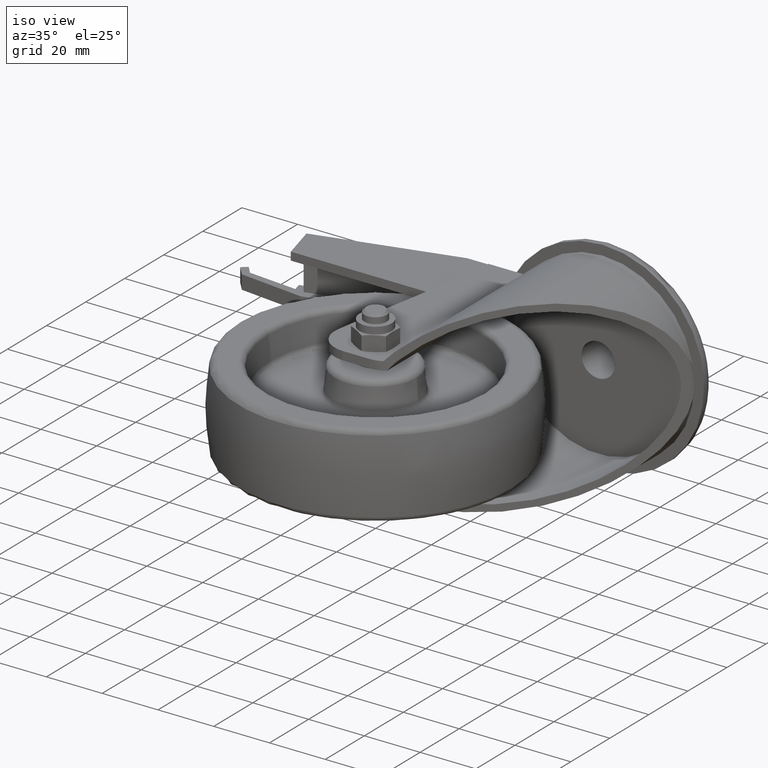
[diagram: clean part render]
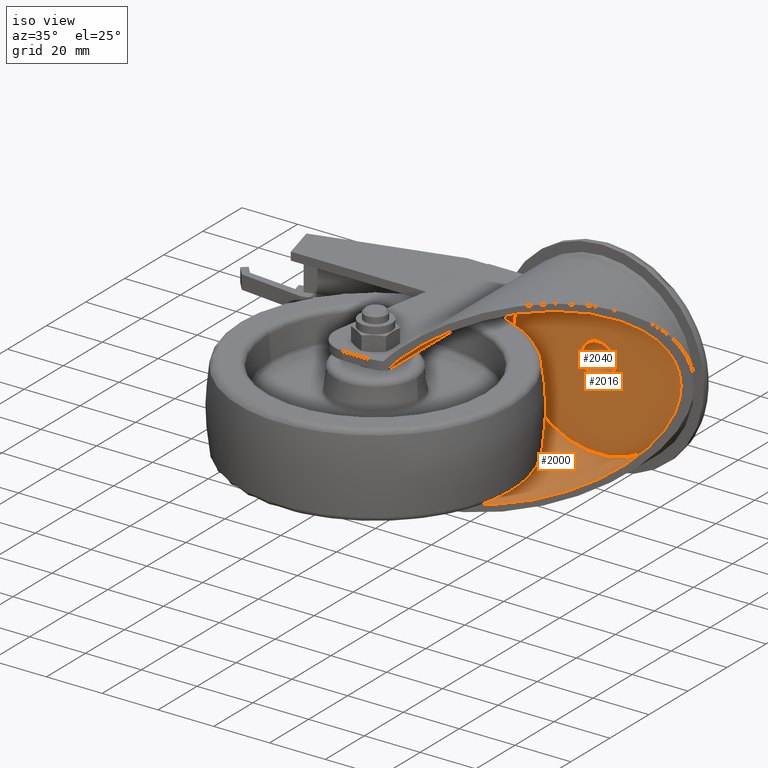
[diagram: same view with one multi-face feature highlighted, each face labeled with its STEP entity id]
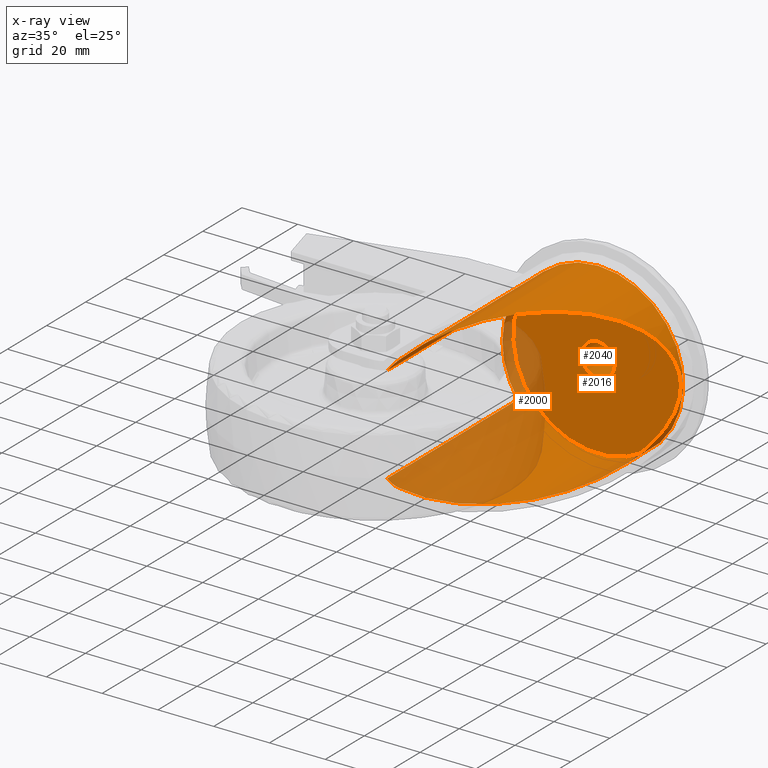
[diagram: x-ray of the same camera — body ghosted, the whole feature saturated]
A machine part, iso view. The highlighted faces form ONE feature: a stepped (counterbored) hole: 2 coaxial cylindrical walls of radii 6 -> 30.5 mm joined by 1 annular planar shoulder face(s). The faces share edges in the B-rep.
The next image is the same camera in x-ray: the body ghosted and the whole hole feature saturated, so the bore chain is visible through the body.
Their STEP definitions:
[1] entity #2000 (Cylinder):
#150=B_SPLINE_CURVE_WITH_KNOTS('',3,(#3205,#3206,#3207,#3208,#3209,#3210),
 .UNSPECIFIED.,.F.,.F.,(4,2,4),(7.83886459878174,8.14861997572344,8.32202138963717),
 .UNSPECIFIED.);
#151=B_SPLINE_CURVE_WITH_KNOTS('',3,(#3213,#3214,#3215,#3216,#3217,#3218),
 .UNSPECIFIED.,.F.,.F.,(4,2,4),(3.67470860947211,3.84811002338585,4.15786540032755),
 .UNSPECIFIED.);
#252=FACE_OUTER_BOUND('',#383,.T.);
#383=EDGE_LOOP('',(#1455,#1456,#1457,#1458,#1459,#1460,#1461,#1462,#1463,
#1464));
#517=CIRCLE('',#2234,30.5);
#528=CIRCLE('',#2254,30.5);
#623=ELLIPSE('',#2255,50.1597158237745,30.5);
#624=ELLIPSE('',#2256,50.1597158237745,30.5);
#656=LINE('',#3166,#789);
#659=LINE('',#3181,#792);
#671=LINE('',#3249,#804);
#789=VECTOR('',#2523,1000.);
#792=VECTOR('',#2538,1000.);
#804=VECTOR('',#2576,30.5);
#914=VERTEX_POINT('',#3147);
#917=VERTEX_POINT('',#3152);
#922=VERTEX_POINT('',#3165);
#928=VERTEX_POINT('',#3179);
#935=VERTEX_POINT('',#3203);
#936=VERTEX_POINT('',#3212);
#942=VERTEX_POINT('',#3246);
#943=VERTEX_POINT('',#3248);
#1104=EDGE_CURVE('',#914,#917,#517,.T.);
#1110=EDGE_CURVE('',#922,#914,#656,.F.);
#1118=EDGE_CURVE('',#917,#928,#659,.T.);
#1127=EDGE_CURVE('',#928,#935,#150,.T.);
#1128=EDGE_CURVE('',#936,#922,#151,.T.);
#1139=EDGE_CURVE('',#942,#942,#528,.T.);
#1140=EDGE_CURVE('',#942,#943,#671,.T.);
#1141=EDGE_CURVE('',#936,#943,#623,.F.);
#1142=EDGE_CURVE('',#943,#935,#624,.F.);
#1455=ORIENTED_EDGE('',*,*,#1139,.F.);
#1456=ORIENTED_EDGE('',*,*,#1140,.T.);
#1457=ORIENTED_EDGE('',*,*,#1141,.F.);
#1458=ORIENTED_EDGE('',*,*,#1128,.T.);
#1459=ORIENTED_EDGE('',*,*,#1110,.T.);
#1460=ORIENTED_EDGE('',*,*,#1104,.T.);
#1461=ORIENTED_EDGE('',*,*,#1118,.T.);
#1462=ORIENTED_EDGE('',*,*,#1127,.T.);
#1463=ORIENTED_EDGE('',*,*,#1142,.F.);
#1464=ORIENTED_EDGE('',*,*,#1140,.F.);
#1971=CYLINDRICAL_SURFACE('',#2253,30.5);
#2000=ADVANCED_FACE('',(#252),#1971,.F.);
#2234=AXIS2_PLACEMENT_3D('',#3154,#2514,#2515);
#2253=AXIS2_PLACEMENT_3D('',#3245,#2572,#2573);
#2254=AXIS2_PLACEMENT_3D('',#3247,#2574,#2575);
#2255=AXIS2_PLACEMENT_3D('',#3250,#2577,#2578);
#2256=AXIS2_PLACEMENT_3D('',#3251,#2579,#2580);
#2514=DIRECTION('center_axis',(0.,-1.,0.));
#2515=DIRECTION('ref_axis',(0.,0.,-1.));
#2523=DIRECTION('',(0.,-1.,0.));
#2538=DIRECTION('',(0.,-1.,0.));
#2572=DIRECTION('center_axis',(0.,-1.,0.));
#2573=DIRECTION('ref_axis',(0.,0.,-1.));
#2574=DIRECTION('center_axis',(0.,-1.,0.));
#2575=DIRECTION('ref_axis',(0.,0.,-1.));
#2576=DIRECTION('',(0.,-1.,0.));
#2577=DIRECTION('center_axis',(0.79389285693816,-0.608057671362319,0.));
#2578=DIRECTION('ref_axis',(-0.608057671362319,-0.79389285693816,0.));
#2579=DIRECTION('center_axis',(0.79389285693816,-0.608057671362319,0.));
#2580=DIRECTION('ref_axis',(-0.608057671362319,-0.79389285693816,0.));
#3147=CARTESIAN_POINT('',(10.0200080064064,58.5,17.5));
#3152=CARTESIAN_POINT('',(10.0200080064064,58.5,-17.5));
#3154=CARTESIAN_POINT('Origin',(35.,58.5,0.));
#3165=CARTESIAN_POINT('',(10.0200080064064,-8.46743850357188,17.5));
#3166=CARTESIAN_POINT('',(10.0200080064064,-10.,17.5));
#3179=CARTESIAN_POINT('',(10.0200080064064,-8.46743850357188,-17.5));
#3181=CARTESIAN_POINT('',(10.0200080064064,-10.,-17.5));
#3203=CARTESIAN_POINT('',(12.6389285693816,-6.08057671362318,-20.7420462942975));
#3205=CARTESIAN_POINT('Ctrl Pts',(10.0200080064064,-8.46743850357188,-17.5));
#3206=CARTESIAN_POINT('Ctrl Pts',(10.5694881377737,-8.12220556246434,-18.2843433875539));
#3207=CARTESIAN_POINT('Ctrl Pts',(11.1369077436319,-7.69336923898673,-19.0148437429139));
#3208=CARTESIAN_POINT('Ctrl Pts',(12.0152196884592,-6.83245133225283,-20.0546377836269));
#3209=CARTESIAN_POINT('Ctrl Pts',(12.3342613330729,-6.47835665134959,-20.413598187635));
#3210=CARTESIAN_POINT('Ctrl Pts',(12.6389285693816,-6.08057671362319,-20.7420462942975));
#3212=CARTESIAN_POINT('',(12.6389285693816,-6.08057671362318,20.7420462942975));
#3213=CARTESIAN_POINT('Ctrl Pts',(12.6389285693816,-6.08057671362319,20.7420462942975));
#3214=CARTESIAN_POINT('Ctrl Pts',(12.3342613330729,-6.47835665134959,20.413598187635));
#3215=CARTESIAN_POINT('Ctrl Pts',(12.0152196884591,-6.83245133225284,20.0546377836269));
#3216=CARTESIAN_POINT('Ctrl Pts',(11.1369077436319,-7.69336923898673,19.0148437429139));
#3217=CARTESIAN_POINT('Ctrl Pts',(10.5694881377737,-8.12220556246434,18.2843433875539));
#3218=CARTESIAN_POINT('Ctrl Pts',(10.0200080064064,-8.46743850357188,17.5));
#3245=CARTESIAN_POINT('Origin',(35.,-10.,0.));
#3246=CARTESIAN_POINT('',(35.,64.,30.5));
#3247=CARTESIAN_POINT('Origin',(35.,64.,0.));
#3248=CARTESIAN_POINT('',(35.,23.1145074343638,30.5));
#3249=CARTESIAN_POINT('',(35.,-10.,30.5));
#3250=CARTESIAN_POINT('Origin',(35.,23.1145074343638,0.));
#3251=CARTESIAN_POINT('Origin',(35.,23.1145074343638,0.));
[2] entity #2040 (Cylinder):
#292=FACE_OUTER_BOUND('',#430,.T.);
#430=EDGE_LOOP('',(#1660,#1661,#1662,#1663));
#532=CIRCLE('',#2265,6.);
#544=CIRCLE('',#2290,6.);
#733=LINE('',#3415,#866);
#866=VECTOR('',#2758,6.);
#949=VERTEX_POINT('',#3270);
#961=VERTEX_POINT('',#3315);
#1153=EDGE_CURVE('',#949,#949,#532,.T.);
#1173=EDGE_CURVE('',#961,#961,#544,.F.);
#1222=EDGE_CURVE('',#949,#961,#733,.T.);
#1660=ORIENTED_EDGE('',*,*,#1153,.F.);
#1661=ORIENTED_EDGE('',*,*,#1222,.T.);
#1662=ORIENTED_EDGE('',*,*,#1173,.F.);
#1663=ORIENTED_EDGE('',*,*,#1222,.F.);
#1978=CYLINDRICAL_SURFACE('',#2314,6.);
#2040=ADVANCED_FACE('',(#292),#1978,.F.);
#2265=AXIS2_PLACEMENT_3D('',#3271,#2602,#2603);
#2290=AXIS2_PLACEMENT_3D('',#3316,#2660,#2661);
#2314=AXIS2_PLACEMENT_3D('',#3414,#2756,#2757);
#2602=DIRECTION('center_axis',(0.,-1.,0.));
#2603=DIRECTION('ref_axis',(0.,0.,-1.));
#2660=DIRECTION('center_axis',(0.,-1.,0.));
#2661=DIRECTION('ref_axis',(0.,0.,-1.));
#2756=DIRECTION('center_axis',(0.,-1.,0.));
#2757=DIRECTION('ref_axis',(0.,0.,-1.));
#2758=DIRECTION('',(0.,-1.,0.));
#3270=CARTESIAN_POINT('',(35.,78.,6.));
#3271=CARTESIAN_POINT('Origin',(35.,78.,0.));
#3315=CARTESIAN_POINT('',(35.,64.,6.));
#3316=CARTESIAN_POINT('Origin',(35.,64.,0.));
#3414=CARTESIAN_POINT('Origin',(35.,58.,0.));
#3415=CARTESIAN_POINT('',(35.,58.,6.));
[3] entity #2016 (Plane):
#161=FACE_BOUND('',#406,.T.);
#191=PLANE('',#2289);
#268=FACE_OUTER_BOUND('',#405,.T.);
#405=EDGE_LOOP('',(#1538));
#406=EDGE_LOOP('',(#1539));
#528=CIRCLE('',#2254,30.5);
#544=CIRCLE('',#2290,6.);
#942=VERTEX_POINT('',#3246);
#961=VERTEX_POINT('',#3315);
#1139=EDGE_CURVE('',#942,#942,#528,.T.);
#1173=EDGE_CURVE('',#961,#961,#544,.F.);
#1538=ORIENTED_EDGE('',*,*,#1139,.T.);
#1539=ORIENTED_EDGE('',*,*,#1173,.T.);
#2016=ADVANCED_FACE('',(#268,#161),#191,.T.);
#2254=AXIS2_PLACEMENT_3D('',#3247,#2574,#2575);
#2289=AXIS2_PLACEMENT_3D('',#3314,#2658,#2659);
#2290=AXIS2_PLACEMENT_3D('',#3316,#2660,#2661);
#2574=DIRECTION('center_axis',(0.,-1.,0.));
#2575=DIRECTION('ref_axis',(0.,0.,-1.));
#2658=DIRECTION('center_axis',(0.,-1.,0.));
#2659=DIRECTION('ref_axis',(0.,0.,-1.));
#2660=DIRECTION('center_axis',(0.,-1.,0.));
#2661=DIRECTION('ref_axis',(0.,0.,-1.));
#3246=CARTESIAN_POINT('',(35.,64.,30.5));
#3247=CARTESIAN_POINT('Origin',(35.,64.,0.));
#3314=CARTESIAN_POINT('Origin',(35.,64.,0.));
#3315=CARTESIAN_POINT('',(35.,64.,6.));
#3316=CARTESIAN_POINT('Origin',(35.,64.,0.));